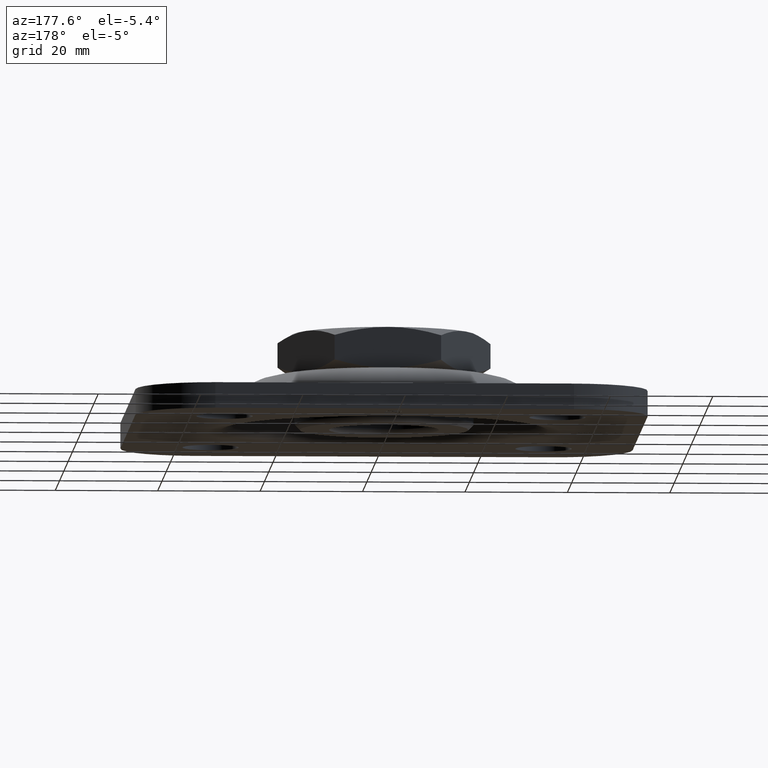
[diagram: clean part render]
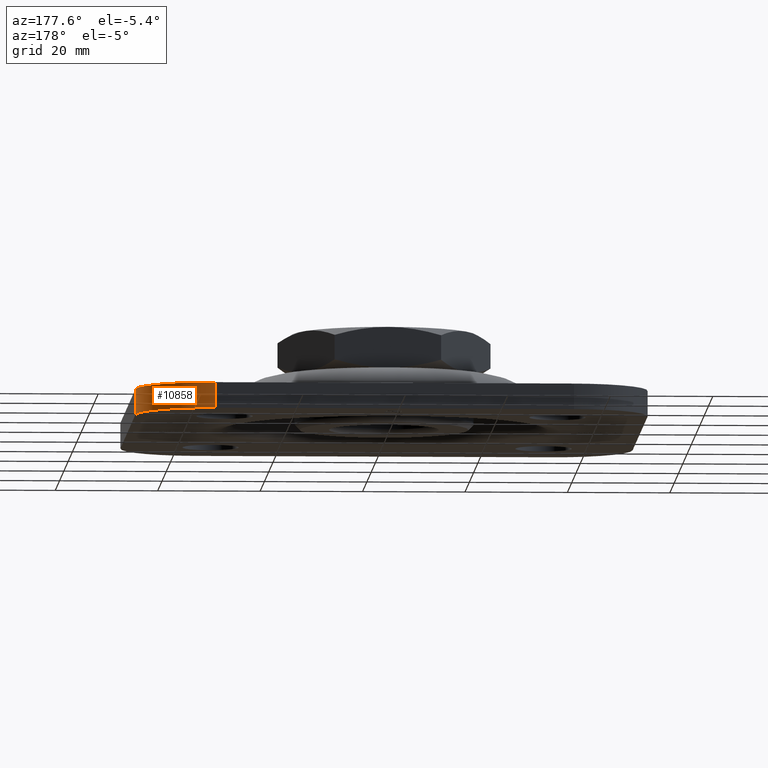
[diagram: same view with one face highlighted and labeled with its STEP entity id]
A machine part, auxiliary view. The second image highlights one B-rep face of the part: STEP entity #10858.
In plain terms, the highlighted cylindrical surface (partial cylindrical patch) has radius 15 mm, axis along (0, 0, 1).
Its self-contained STEP definition (entity closure, byte-faithful):
#483 = DIRECTION ( 'NONE',  ( 1.000000000000000000, 0.000000000000000000, 0.000000000000000000 ) ) ;
#1469 = CARTESIAN_POINT ( 'NONE',  ( 50.00000000000000000, 35.00000000000000000, 5.000000000000004441 ) ) ;
#2253 = AXIS2_PLACEMENT_3D ( 'NONE', #3382, #10642, #4445 ) ;
#2785 = DIRECTION ( 'NONE',  ( 0.000000000000000000, 0.000000000000000000, -1.000000000000000000 ) ) ;
#2916 = CYLINDRICAL_SURFACE ( 'NONE', #2253, 15.00000000000000000 ) ;
#3151 = EDGE_CURVE ( 'NONE', #6781, #14103, #4629, .T. ) ;
#3382 = CARTESIAN_POINT ( 'NONE',  ( 35.00000000000000000, 35.00000000000000000, 75.71067811865478347 ) ) ;
#3852 = CIRCLE ( 'NONE', #7104, 15.00000000000000000 ) ;
#3926 = ORIENTED_EDGE ( 'NONE', *, *, #10591, .F. ) ;
#4050 = EDGE_LOOP ( 'NONE', ( #3926, #14555, #9706, #4081 ) ) ;
#4081 = ORIENTED_EDGE ( 'NONE', *, *, #3151, .F. ) ;
#4445 = DIRECTION ( 'NONE',  ( 1.000000000000000000, 0.000000000000000000, 0.000000000000000000 ) ) ;
#4446 = EDGE_CURVE ( 'NONE', #14103, #8652, #13076, .T. ) ;
#4629 = LINE ( 'NONE', #7075, #12738 ) ;
#5213 = CARTESIAN_POINT ( 'NONE',  ( 50.00000000000000000, 35.00000000000000000, 5.000000000000004441 ) ) ;
#6549 = CARTESIAN_POINT ( 'NONE',  ( 35.00000000000000000, 35.00000000000000000, 5.000000000000004441 ) ) ;
#6781 = VERTEX_POINT ( 'NONE', #12945 ) ;
#7075 = CARTESIAN_POINT ( 'NONE',  ( 35.00000000000000000, 50.00000000000000000, 0.000000000000000000 ) ) ;
#7104 = AXIS2_PLACEMENT_3D ( 'NONE', #6549, #12483, #13626 ) ;
#7252 = LINE ( 'NONE', #1469, #7614 ) ;
#7614 = VECTOR ( 'NONE', #7692, 1000.000000000000000 ) ;
#7692 = DIRECTION ( 'NONE',  ( -0.000000000000000000, -0.000000000000000000, 1.000000000000000000 ) ) ;
#8130 = AXIS2_PLACEMENT_3D ( 'NONE', #13699, #2785, #483 ) ;
#8604 = DIRECTION ( 'NONE',  ( 0.000000000000000000, 0.000000000000000000, -1.000000000000000000 ) ) ;
#8652 = VERTEX_POINT ( 'NONE', #10801 ) ;
#9358 = FACE_OUTER_BOUND ( 'NONE', #4050, .T. ) ;
#9706 = ORIENTED_EDGE ( 'NONE', *, *, #4446, .F. ) ;
#10591 = EDGE_CURVE ( 'NONE', #15038, #6781, #3852, .T. ) ;
#10642 = DIRECTION ( 'NONE',  ( 0.000000000000000000, 0.000000000000000000, 1.000000000000000000 ) ) ;
#10801 = CARTESIAN_POINT ( 'NONE',  ( 50.00000000000000000, 35.00000000000000000, 0.000000000000000000 ) ) ;
#10858 = ADVANCED_FACE ( 'NONE', ( #9358 ), #2916, .T. ) ;
#12026 = CARTESIAN_POINT ( 'NONE',  ( 35.00000000000000000, 50.00000000000000000, 0.000000000000000000 ) ) ;
#12483 = DIRECTION ( 'NONE',  ( -0.000000000000000000, -0.000000000000000000, 1.000000000000000000 ) ) ;
#12673 = EDGE_CURVE ( 'NONE', #8652, #15038, #7252, .T. ) ;
#12738 = VECTOR ( 'NONE', #8604, 1000.000000000000000 ) ;
#12945 = CARTESIAN_POINT ( 'NONE',  ( 35.00000000000000000, 50.00000000000000000, 5.000000000000004441 ) ) ;
#13076 = CIRCLE ( 'NONE', #8130, 15.00000000000000000 ) ;
#13626 = DIRECTION ( 'NONE',  ( -1.000000000000000000, 0.000000000000000000, 0.000000000000000000 ) ) ;
#13699 = CARTESIAN_POINT ( 'NONE',  ( 35.00000000000000000, 35.00000000000000000, 0.000000000000000000 ) ) ;
#14103 = VERTEX_POINT ( 'NONE', #12026 ) ;
#14555 = ORIENTED_EDGE ( 'NONE', *, *, #12673, .F. ) ;
#15038 = VERTEX_POINT ( 'NONE', #5213 ) ;